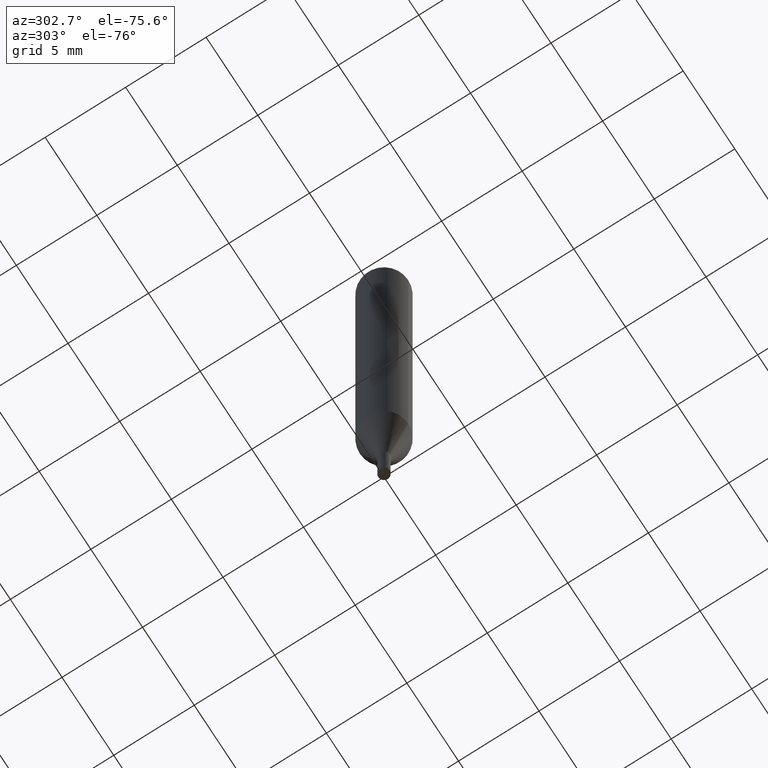
[diagram: clean part render]
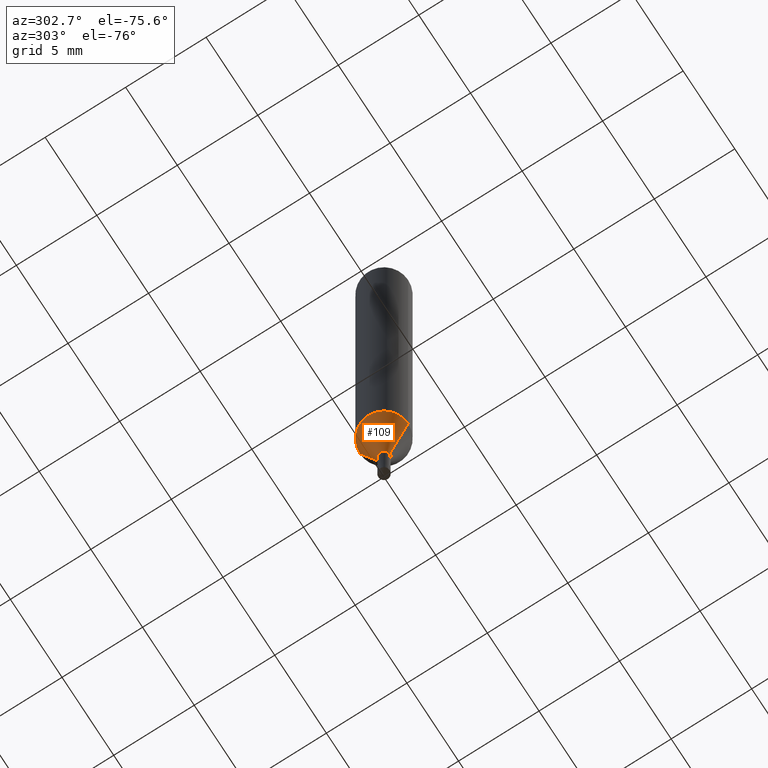
[diagram: same view with one face highlighted and labeled with its STEP entity id]
A machine part, auxiliary view. The second image highlights one B-rep face of the part: STEP entity #109.
In plain terms, the highlighted conical surface has half-angle 16.001 deg.
Its self-contained STEP definition (entity closure, byte-faithful):
#91=VERTEX_POINT('',#226);
#97=EDGE_CURVE('',#163,#105,#233,.T.);
#105=VERTEX_POINT('',#241);
#109=ADVANCED_FACE('',(#246),#247,.T.);
#113=EDGE_CURVE('',#105,#91,#252,.T.);
#143=EDGE_CURVE('',#157,#91,#287,.T.);
#149=EDGE_CURVE('',#157,#163,#293,.T.);
#157=VERTEX_POINT('',#301);
#163=VERTEX_POINT('',#308);
#226=CARTESIAN_POINT('',(0.0,0.35,-34.4991339745962));
#233=CIRCLE('',#376,1.5);
#241=CARTESIAN_POINT('',(0.0,1.5,-30.489));
#246=FACE_OUTER_BOUND('',#388,.T.);
#247=CONICAL_SURFACE('',#389,0.925,0.279278622561771);
#252=LINE('',#395,#396);
#287=CIRCLE('',#442,0.35);
#293=LINE('',#451,#452);
#301=CARTESIAN_POINT('',(4.28612223837832E-017,-0.35,-34.4991339745962));
#308=CARTESIAN_POINT('',(1.83690953073357E-016,-1.5,-30.489));
#376=AXIS2_PLACEMENT_3D('',#543,#544,#545);
#388=EDGE_LOOP('',(#556,#557,#558,#559));
#389=AXIS2_PLACEMENT_3D('',#560,#561,#562);
#395=CARTESIAN_POINT('',(-1.1327608772857E-016,0.925,-32.4940669872981));
#396=VECTOR('',#570,1.0);
#442=AXIS2_PLACEMENT_3D('',#627,#628,#629);
#451=CARTESIAN_POINT('',(1.1327608772857E-016,-0.925,-32.4940669872981));
#452=VECTOR('',#631,1.0);
#543=CARTESIAN_POINT('',(0.0,0.0,-30.489));
#544=DIRECTION('',(0.0,0.0,-1.0));
#545=DIRECTION('',(0.0,1.0,0.0));
#556=ORIENTED_EDGE('',*,*,#113,.T.);
#557=ORIENTED_EDGE('',*,*,#143,.F.);
#558=ORIENTED_EDGE('',*,*,#149,.T.);
#559=ORIENTED_EDGE('',*,*,#97,.T.);
#560=CARTESIAN_POINT('',(0.0,0.0,-32.4940669872981));
#561=DIRECTION('',(-0.0,-0.0,1.0));
#562=DIRECTION('',(0.0,1.0,0.0));
#570=DIRECTION('',(3.37577795527378E-017,-0.275662293008437,-0.96125454496368));
#627=CARTESIAN_POINT('',(0.0,0.0,-34.4991339745962));
#628=DIRECTION('',(0.0,0.0,-1.0));
#629=DIRECTION('',(0.0,1.0,0.0));
#631=DIRECTION('',(3.37577795527378E-017,-0.275662293008437,0.96125454496368));